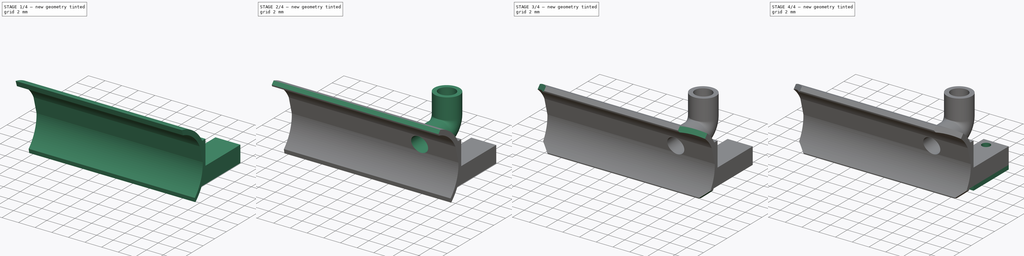
[diagram: build sequence overview — one tinted view per stage of 4, left to right]
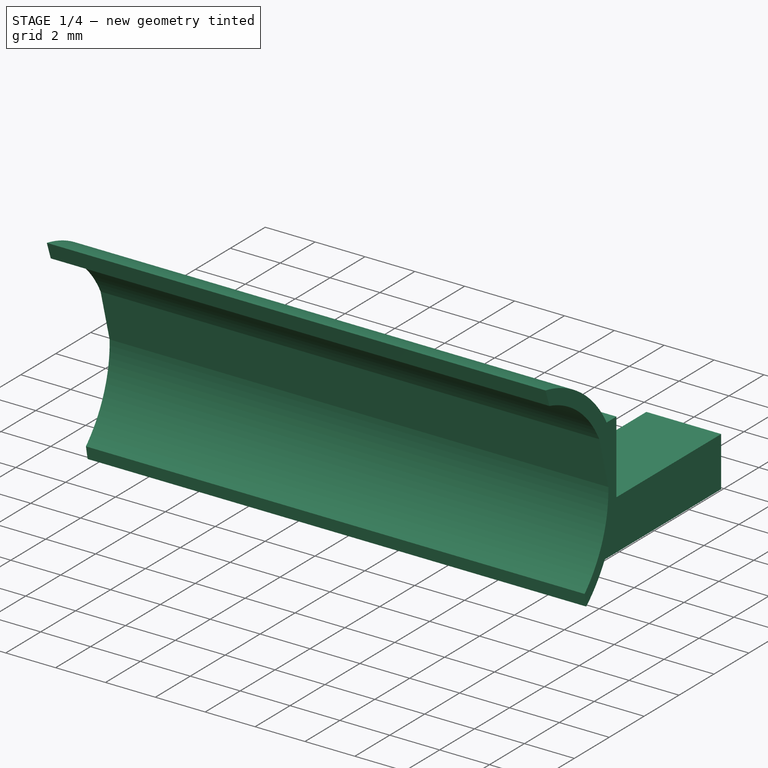
[diagram: stage 1 of 4 — iso view after this stage's code; geometry added in this stage tinted green]
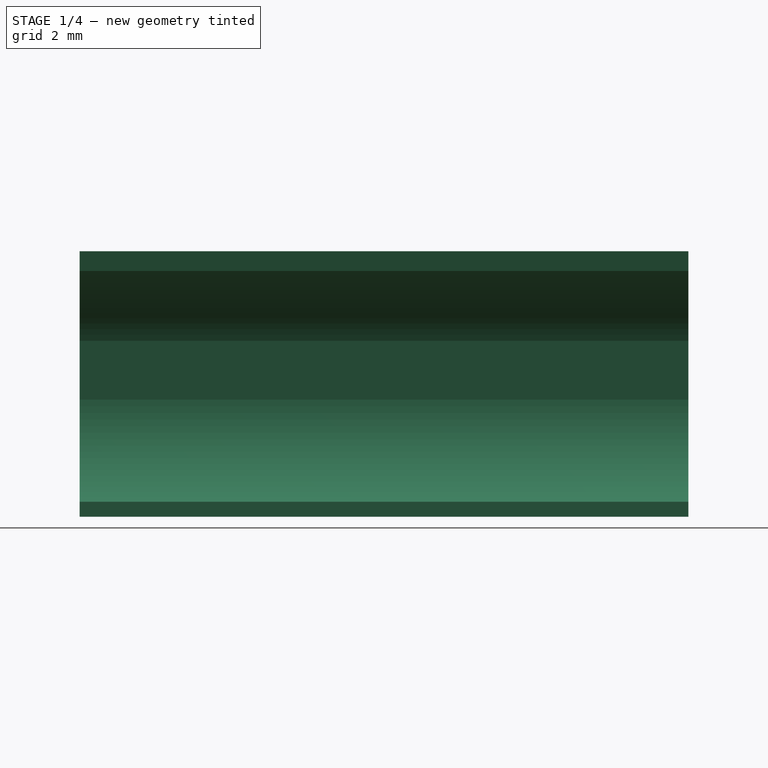
[diagram: stage 1 of 4 — front view after this stage's code; geometry added in this stage tinted green]
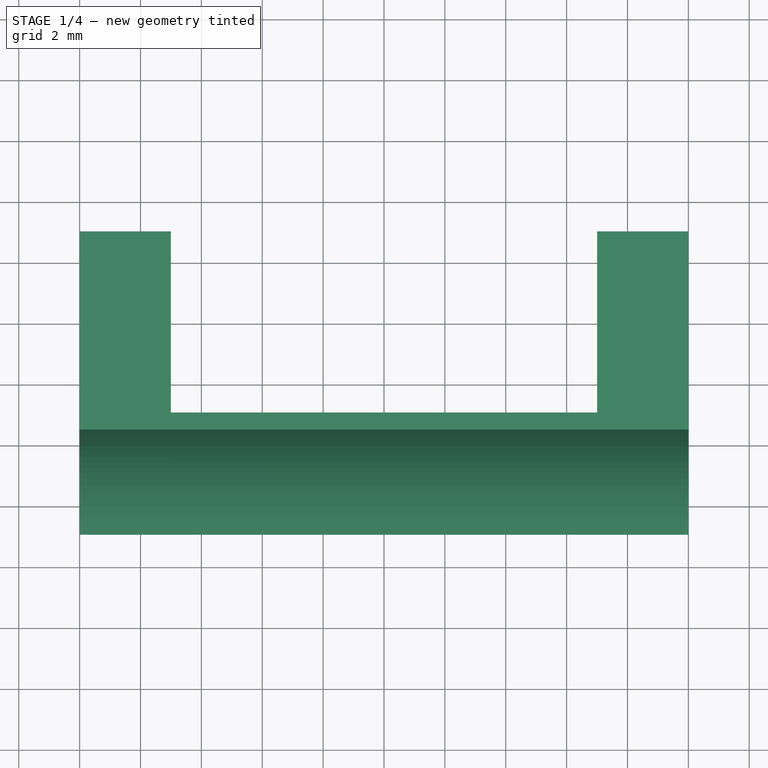
[diagram: stage 1 of 4 — top view after this stage's code; geometry added in this stage tinted green]
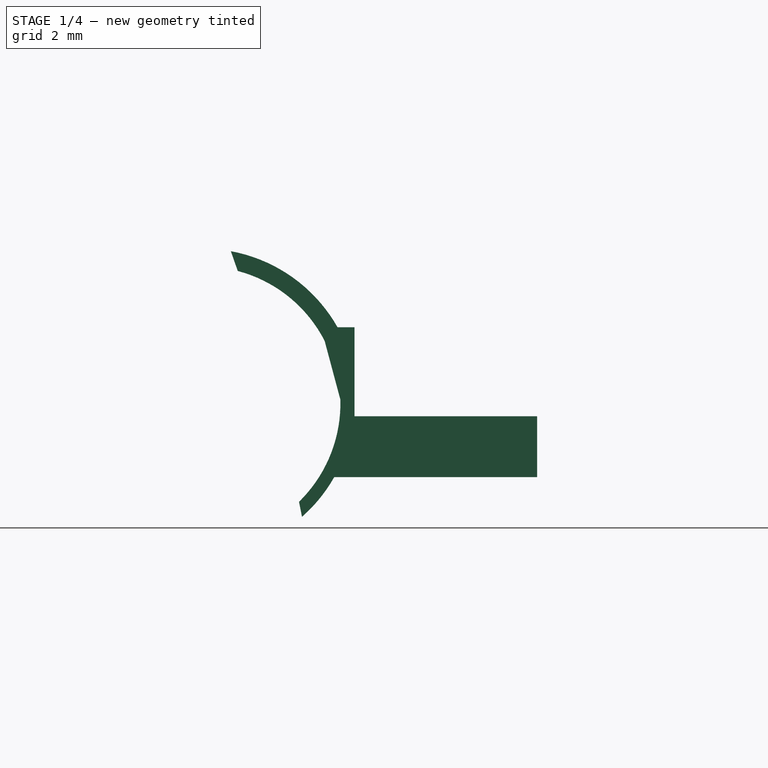
[diagram: stage 1 of 4 — right view after this stage's code; geometry added in this stage tinted green]
FCSTD DOCUMENT  (FreeCAD 0.20R29177 +233 (Git))
Label: actuator8_pistonPCBside
License: All rights reserved
LicenseURL: http://en.wikipedia.org/wiki/All_rights_reserved
objects: Sketcher::SketchObject×7, PartDesign::Chamfer×4, PartDesign::Pad×3, PartDesign::Pocket×2, Spreadsheet::Sheet×1, PartDesign::Plane×1, PartDesign::AdditivePipe×1, PartDesign::Body×1
note: 29 computed .brp shape members not serialized (recipe doc carries the construction recipe); baked Part::Feature solids carry a one-line shape summary decoded from their .brp

FEATURE [Spreadsheet::Sheet] Spreadsheet
  cells = B2=piston; E2=fasteners; C3=ln; D3(pst_ln)=20; F3=ln; G3(fst_ln)=6; C4=rd; D4(pst_rd)=4.5; F4=w; G4(fst_w)=3; C5=angl; D5(pst_an)=15; F5=h; G5(fst_h)=2; C6=arc; D6(pst_arc)=120; B8=flate; C9=slot; D9(flt_slot)=2; C10=fix; D10(flt_fix)=4
FEATURE [Sketcher::SketchObject] Sketch
  FullyConstrained = true
  MapMode = 5
  Placement = pos=(0,0,0) rot=(0.57735,0.57735,0.57735;2.0944rad)
  Support = -> [YZ_Plane]
  expr: Constraints[0] = Spreadsheet.pst_arc
  expr: Constraints[1] = Spreadsheet.pst_rd
  expr: Constraints[4] = Spreadsheet.pst_an
  sketch-geometry (3):
    g0: ArcOfCircle CenterX=0 CenterY=0 CenterZ=0 NormalX=0 NormalY=0 NormalZ=1 AngleXU=0 Radius=4.5 StartAngle=5.49779 EndAngle=7.59218
    g1: LineSegment StartX=0 StartY=0 StartZ=0 EndX=4.34667 EndY=1.16469 EndZ=0
    g2: LineSegment StartX=1.16469 StartY=4.34667 StartZ=0 EndX=3.18198 EndY=-3.18198 EndZ=0
  constraints (9):
    c: Angle(g0) = 2.0944
    c: Radius(g0) = 4.5
    c: Coincident(g1,g0)
    c: PointOnObject(g1,g0)
    c: Angle(g-1,g1) = 0.261799
    c: Coincident(g2,g0)
    c: Coincident(g2,g0)
    c: Perpendicular(g1,g2)
    c: Coincident(g-1,g0)
FEATURE [Sketcher::SketchObject] Sketch001
  ExternalGeometry = -> [Sketch]
  FullyConstrained = false
  MapMode = 5
  Placement = pos=(0,0,0) rot=(0.57735,0.57735,0.57735;2.0944rad)
  Support = -> [YZ_Plane]
  expr: Constraints[16] = Spreadsheet.flt_slot
  expr: Constraints[19] = Spreadsheet.pst_rd
  sketch-geometry (10):
    g0: LineSegment StartX=4.9851 StartY=2.5 StartZ=0 EndX=4.9851 EndY=-2.42353 EndZ=0
    g1: LineSegment StartX=4.9851 StartY=2.5 StartZ=0 EndX=4.42725 EndY=2.5 EndZ=0
    g2: LineSegment StartX=4.9851 StartY=-2.42353 StartZ=0 EndX=4.31629 EndY=-2.42353 EndZ=0
    g3: ArcOfCircle CenterX=0 CenterY=0 CenterZ=0 NormalX=0 NormalY=0 NormalZ=1 AngleXU=0 Radius=4.5 StartAngle=0.474511 EndAngle=1.31267
    g4: ArcOfCircle CenterX=0 CenterY=0 CenterZ=0 NormalX=0 NormalY=0 NormalZ=1 AngleXU=0 Radius=5.08435 StartAngle=0.514047 EndAngle=1.38839
    g5: ArcOfCircle CenterX=0 CenterY=0 CenterZ=0 NormalX=0 NormalY=0 NormalZ=1 AngleXU=0 Radius=4.95014 StartAngle=5.43099 EndAngle=5.77157
    g6: LineSegment StartX=1.14872 StartY=4.35091 StartZ=0 EndX=0.922272 EndY=5 EndZ=0
    g7: LineSegment StartX=3.16223 StartY=-3.2327 StartZ=0 EndX=3.25882 EndY=-3.72612 EndZ=0
    g8: LineSegment StartX=4.00282 StartY=2.05607 StartZ=0 EndX=4.52046 EndY=0.124215 EndZ=0
    g9: ArcOfCircle CenterX=0 CenterY=0 CenterZ=0 NormalX=0 NormalY=0 NormalZ=1 AngleXU=0 Radius=4.52217 StartAngle=5.48677 EndAngle=6.31066
  constraints (22):
    c: Vertical(g0)
    c: Coincident(g1,g0)
    c: Coincident(g2,g0)
    c: Horizontal(g2)
    c: Coincident(g3,g-1)
    c: Coincident(g4,g3)
    c: Coincident(g4,g1)
    c: Coincident(g5,g3)
    c: Coincident(g5,g2)
    c: Coincident(g6,g3)
    c: Coincident(g6,g4)
    c: Coincident(g7,g5)
    c: Coincident(g8,g3)
    c: Coincident(g9,g3)
    c: Coincident(g9,g8)
    c: Coincident(g9,g7)
    c: Distance(g8,g3) = 2
    c: Horizontal(g1)
    c: Perpendicular(g-3,g8)
    c: Radius(g3) = 4.5
    c: Distance(g0,g-1) = 2.5
    c: Distance(g4,g-1) = 5
FEATURE [PartDesign::Pad] Pad
  Direction = (1,1,1)
  Length = 20
  Length2 = 100
  Placement = pos=(0,0,0) rot=(0.57735,0.57735,0.57735;2.0944rad)
  Profile = -> Sketch001
  Type = 0
  expr: Length = Spreadsheet.pst_ln
FEATURE [Sketcher::SketchObject] Sketch002
  ExternalGeometry = -> [Pad]
  FullyConstrained = true
  MapMode = 5
  Placement = pos=(2.2e-15,4.9851,-1.1e-15) rot=(0.57735,0.57735,0.57735;4.18879rad)
  Support = -> [Pad]
  expr: Constraints[18] = Spreadsheet.fst_h
  expr: Constraints[19] = Spreadsheet.fst_w
  sketch-geometry (8):
    g0: LineSegment StartX=-2.42353 StartY=0 StartZ=0 EndX=-0.423528 EndY=0 EndZ=0
    g1: LineSegment StartX=-0.423528 StartY=0 StartZ=0 EndX=-0.423528 EndY=3 EndZ=0
    g2: LineSegment StartX=-0.423528 StartY=3 StartZ=0 EndX=-2.42353 EndY=3 EndZ=0
    g3: LineSegment StartX=-2.42353 StartY=3 StartZ=0 EndX=-2.42353 EndY=0 EndZ=0
    g4: LineSegment StartX=-2.42353 StartY=20 StartZ=0 EndX=-0.423528 EndY=20 EndZ=0
    g5: LineSegment StartX=-0.423528 StartY=20 StartZ=0 EndX=-0.423528 EndY=17 EndZ=0
    g6: LineSegment StartX=-0.423528 StartY=17 StartZ=0 EndX=-2.42353 EndY=17 EndZ=0
    g7: LineSegment StartX=-2.42353 StartY=17 StartZ=0 EndX=-2.42353 EndY=20 EndZ=0
  constraints (22):
    c: Coincident(g0,g1)
    c: Coincident(g1,g2)
    c: Coincident(g2,g3)
    c: Coincident(g3,g0)
    c: Horizontal(g0)
    c: Horizontal(g2)
    c: Vertical(g1)
    c: Vertical(g3)
    c: Coincident(g0,g-3)
    c: Coincident(g4,g5)
    c: Coincident(g5,g6)
    c: Coincident(g6,g7)
    c: Coincident(g7,g4)
    c: Horizontal(g4)
    c: Horizontal(g6)
    c: Vertical(g5)
    c: Vertical(g7)
    c: Coincident(g4,g-3)
    c: DistanceX(g4,g4) = 2
    c: DistanceY(g5,g5) = 3
    c: Equal(g6,g2)
    c: Equal(g5,g1)
FEATURE [PartDesign::Pad] Pad001
  BaseFeature = -> Pad
  Direction = (1,1,1)
  Length = 6
  Length2 = 100
  Placement = pos=(0,0,0) rot=(0.57735,0.57735,0.57735;2.0944rad)
  Profile = -> Sketch002
  Type = 0
  expr: Length = Spreadsheet.fst_ln
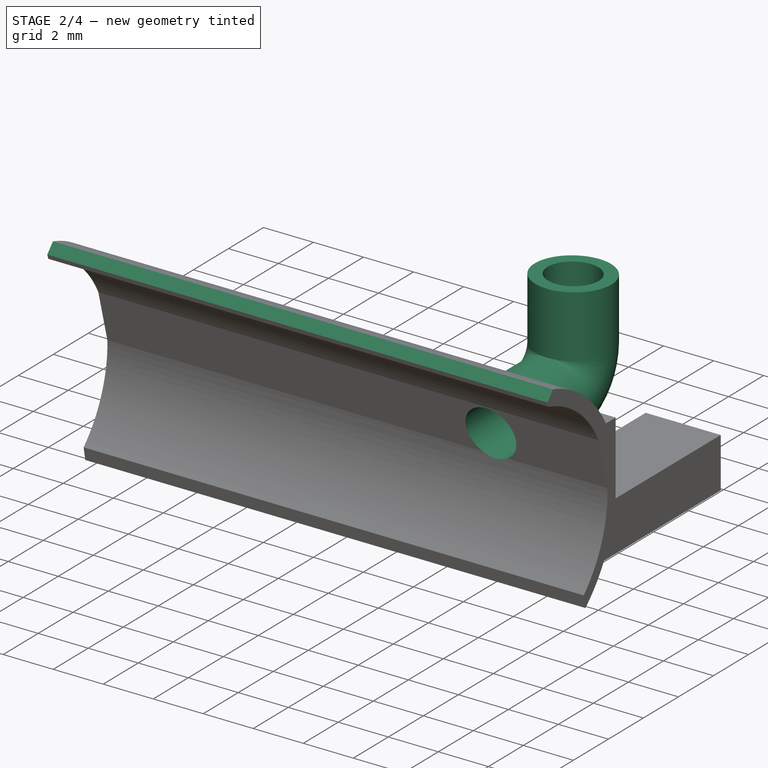
[diagram: stage 2 of 4 — iso view after this stage's code; geometry added in this stage tinted green]
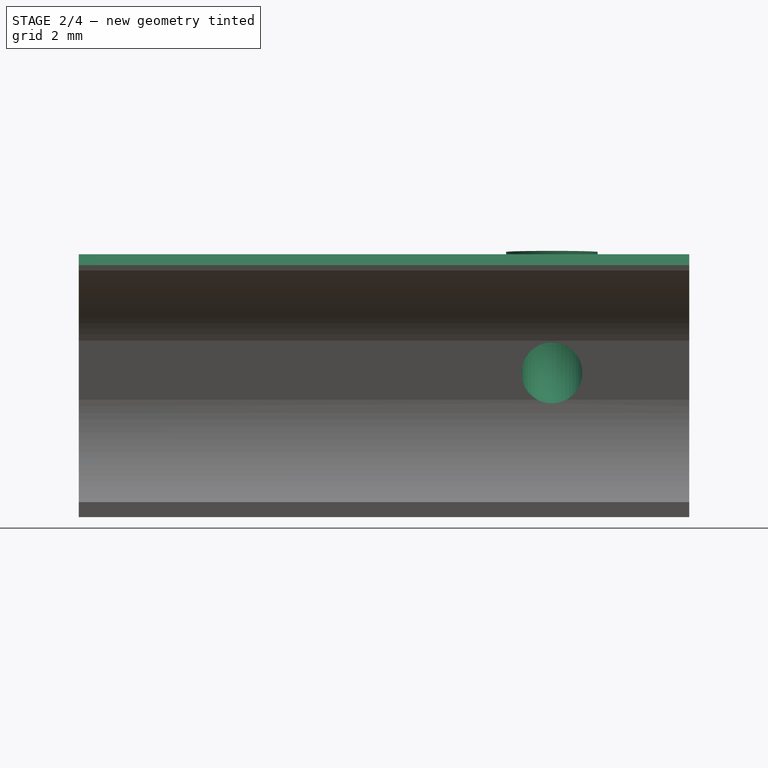
[diagram: stage 2 of 4 — front view after this stage's code; geometry added in this stage tinted green]
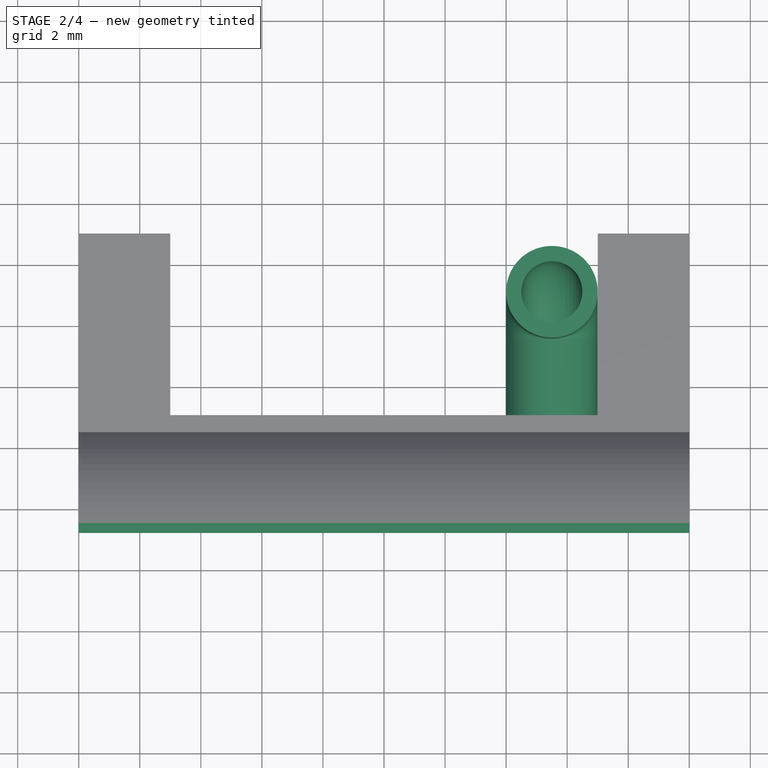
[diagram: stage 2 of 4 — top view after this stage's code; geometry added in this stage tinted green]
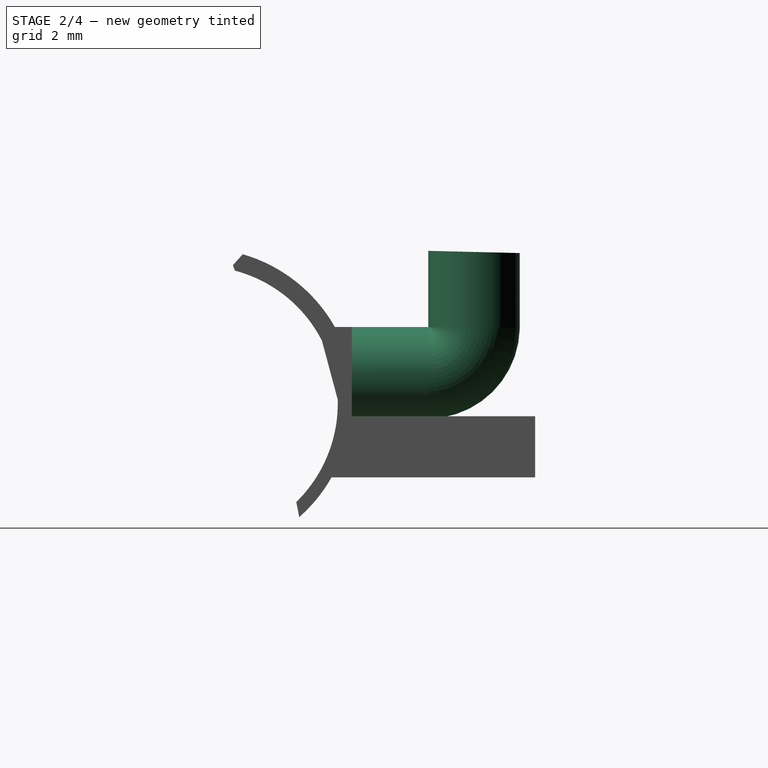
[diagram: stage 2 of 4 — right view after this stage's code; geometry added in this stage tinted green]
FEATURE [Sketcher::SketchObject] Sketch003
  ExternalGeometry = -> [Pad001]
  FullyConstrained = true
  MapMode = 5
  Placement = pos=(2.2e-15,4.9851,-1.1e-15) rot=(0.57735,0.57735,0.57735;4.18879rad)
  Support = -> [Pad001]
  sketch-geometry (1):
    g0: Circle CenterX=1 CenterY=15.5 CenterZ=0 NormalX=0 NormalY=0 NormalZ=1 AngleXU=0 Radius=1
  constraints (3):
    c: Radius(g0) = 1
    c: Distance(g0,g-3) = 4.5
    c: Distance(g0,g-4) = 1.5
FEATURE [PartDesign::Pocket] Pocket
  BaseFeature = -> Pad001
  Direction = (1,1,1)
  Length = 5
  Length2 = 100
  Placement = pos=(0,0,0) rot=(0.57735,0.57735,0.57735;2.0944rad)
  Profile = -> Sketch003
  Type = 1
FEATURE [Sketcher::SketchObject] Sketch004
  ExternalGeometry = -> [Pocket]
  FullyConstrained = true
  MapMode = 5
  Placement = pos=(2.2e-15,4.9851,-1.1e-15) rot=(0.57735,0.57735,0.57735;4.18879rad)
  Support = -> [Pocket]
  sketch-geometry (2):
    g0: Circle CenterX=1 CenterY=15.5 CenterZ=0 NormalX=0 NormalY=0 NormalZ=1 AngleXU=0 Radius=1.5
    g1: Circle CenterX=1 CenterY=15.5 CenterZ=0 NormalX=0 NormalY=0 NormalZ=1 AngleXU=0 Radius=1
  constraints (4):
    c: Coincident(g0,g-3)
    c: Coincident(g1,g0)
    c: Radius(g0) = 1.5
    c: Radius(g1) = 1
FEATURE [PartDesign::Plane] DatumPlane001
  AttachmentOffset = pos=(0,0,1.5) rot=(0,0,1;0rad)
  Length = 30
  MapMode = 5
  Placement = pos=(15.5,-6e-15,6.8e-15) rot=(0.57735,0.57735,-0.57735;4.18879rad)
  ResizeMode = 1
  Support = -> [Pocket]
  Width = 20
FEATURE [Sketcher::SketchObject] Sketch005
  ExternalGeometry = -> [Pocket]
  FullyConstrained = false
  MapMode = 5
  Placement = pos=(15.5,-6e-15,6.8e-15) rot=(0.57735,0.57735,-0.57735;4.18879rad)
  Support = -> [DatumPlane001]
  sketch-geometry (3):
    g0: LineSegment StartX=4.98689 StartY=-1 StartZ=0 EndX=7.4851 EndY=-1 EndZ=0
    g1: ArcOfCircle CenterX=7.46714 CenterY=-2.51797 CenterZ=0 NormalX=0 NormalY=0 NormalZ=1 AngleXU=0 Radius=1.51808 StartAngle=0.0120052 EndAngle=1.55896
    g2: LineSegment StartX=8.9851 StartY=-2.49975 StartZ=0 EndX=8.9851 EndY=-4.96189 EndZ=0
  constraints (5):
    c: Horizontal(g0)
    c: Distance(g-3,g0) = 1.5
    c: Coincident(g1,g0)
    c: Coincident(g2,g1)
    c: Vertical(g2)
FEATURE [PartDesign::AdditivePipe] AdditivePipe
  AuxilleryCurvelinear = true
  AuxillerySpineTangent = false
  BaseFeature = -> Pocket
  Binormal = (0,0,0)
  Mode = 0
  Placement = pos=(0,0,0) rot=(0.57735,0.57735,0.57735;2.0944rad)
  Profile = -> Sketch004
  Spine = -> Sketch005 [Edge1,Edge2,Edge3]
  SpineTangent = false
  Transformation = 0
  Transition = 0
FEATURE [PartDesign::Chamfer] Chamfer
  Angle = 45
  Base = -> AdditivePipe [Edge11]
  BaseFeature = -> AdditivePipe
  ChamferType = 0
  FlipDirection = false
  Placement = pos=(0,0,0) rot=(0.57735,0.57735,0.57735;2.0944rad)
  Size = 0.5
  Size2 = 1
  SupportTransform = false
  UseAllEdges = false
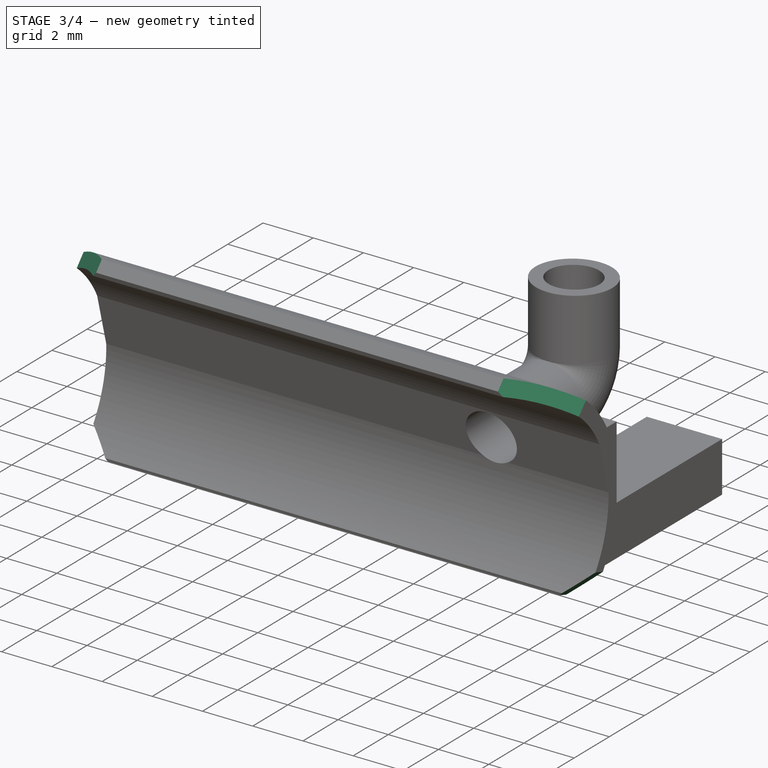
[diagram: stage 3 of 4 — iso view after this stage's code; geometry added in this stage tinted green]
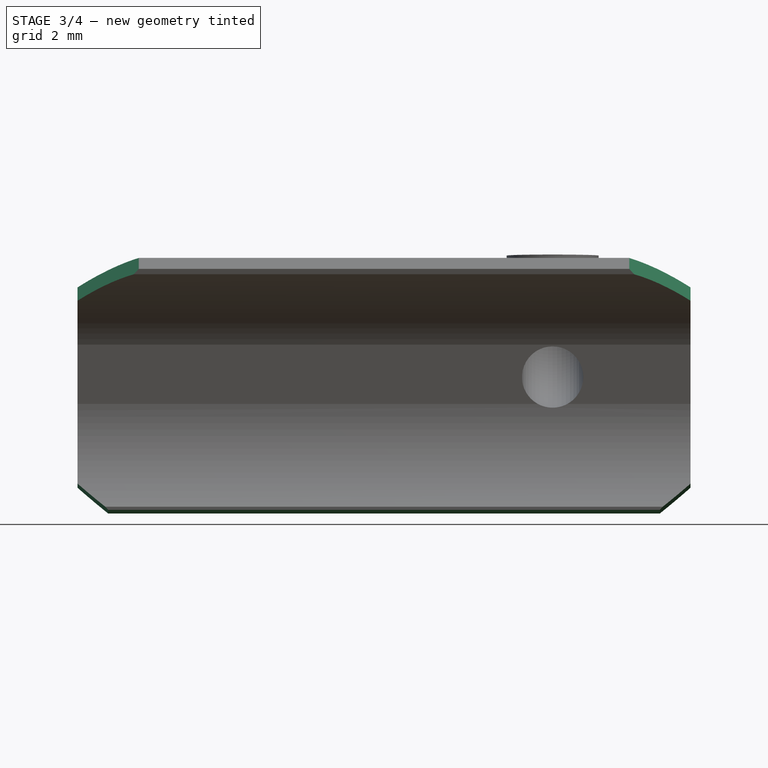
[diagram: stage 3 of 4 — front view after this stage's code; geometry added in this stage tinted green]
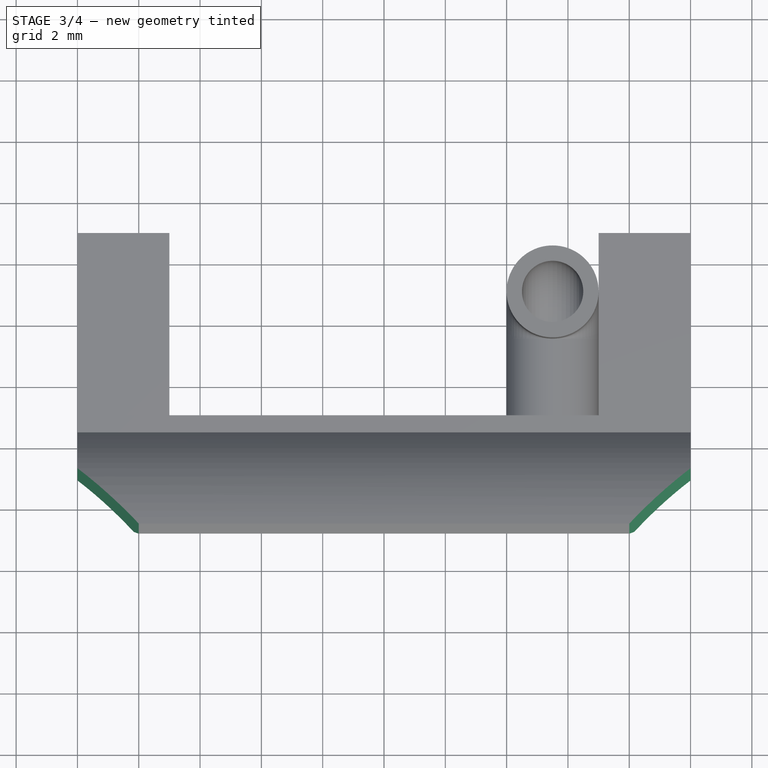
[diagram: stage 3 of 4 — top view after this stage's code; geometry added in this stage tinted green]
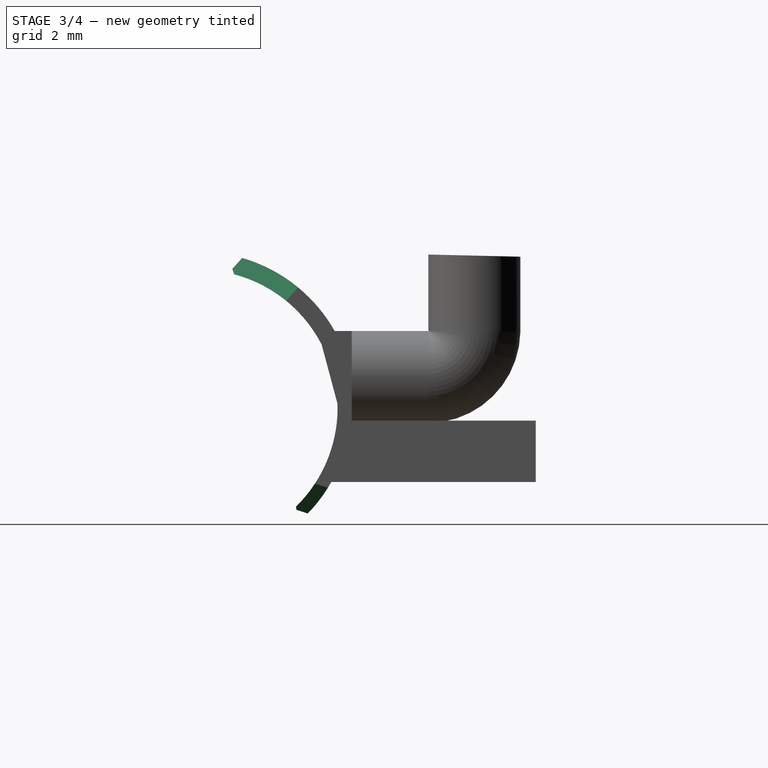
[diagram: stage 3 of 4 — right view after this stage's code; geometry added in this stage tinted green]
FEATURE [PartDesign::Chamfer] Chamfer001
  Angle = 45
  Base = -> Chamfer [Edge17,Edge5]
  BaseFeature = -> Chamfer
  ChamferType = 0
  FlipDirection = false
  Placement = pos=(0,0,0) rot=(0.57735,0.57735,0.57735;2.0944rad)
  Size = 2
  Size2 = 1
  SupportTransform = false
  UseAllEdges = false
FEATURE [PartDesign::Chamfer] Chamfer002
  Angle = 45
  Base = -> Chamfer001 [Edge45]
  BaseFeature = -> Chamfer001
  ChamferType = 0
  FlipDirection = false
  Placement = pos=(0,0,0) rot=(0.57735,0.57735,0.57735;2.0944rad)
  Size = 0.4
  Size2 = 1
  SupportTransform = false
  UseAllEdges = false
FEATURE [PartDesign::Chamfer] Chamfer003
  Angle = 45
  Base = -> Chamfer002 [Edge17,Edge2]
  BaseFeature = -> Chamfer002
  ChamferType = 0
  FlipDirection = false
  Placement = pos=(0,0,0) rot=(0.57735,0.57735,0.57735;2.0944rad)
  Size = 1
  Size2 = 1
  SupportTransform = false
  UseAllEdges = false
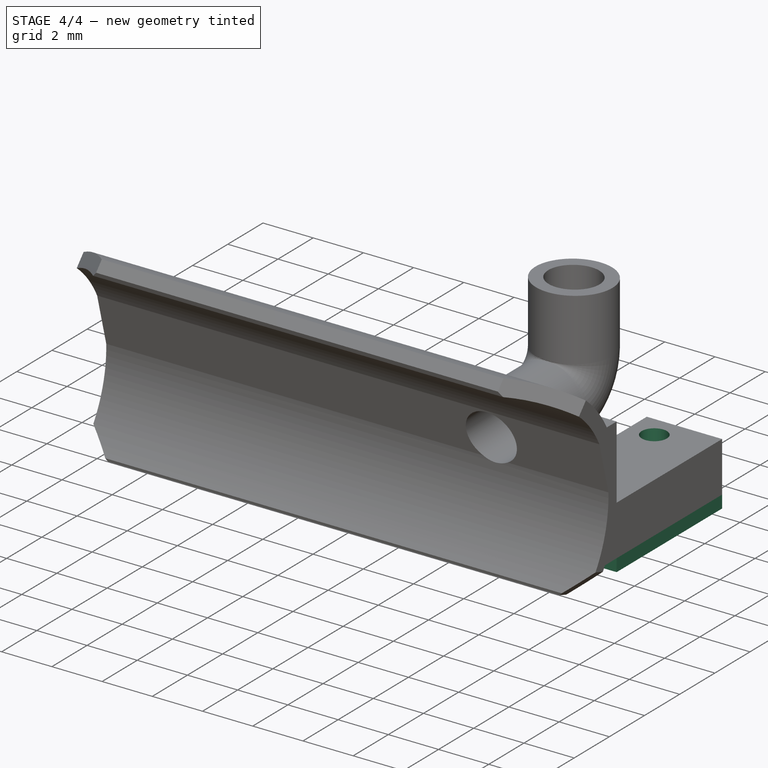
[diagram: stage 4 of 4 — iso view after this stage's code; geometry added in this stage tinted green]
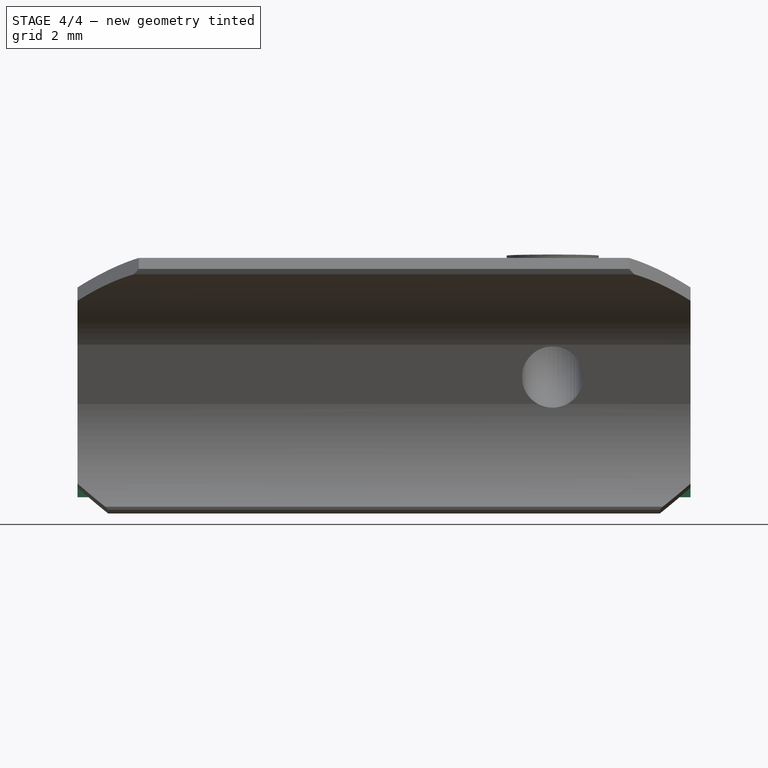
[diagram: stage 4 of 4 — front view after this stage's code; geometry added in this stage tinted green]
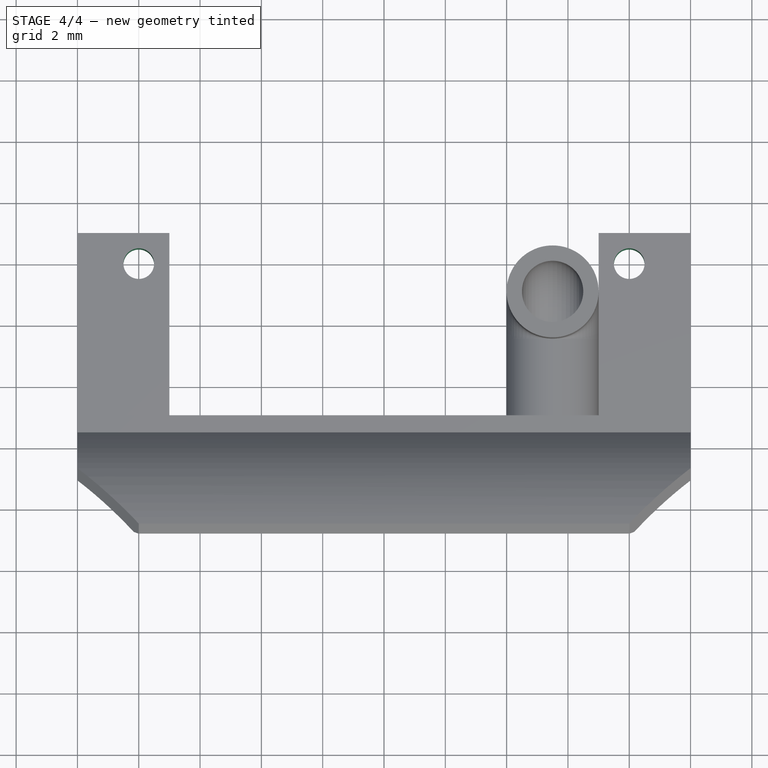
[diagram: stage 4 of 4 — top view after this stage's code; geometry added in this stage tinted green]
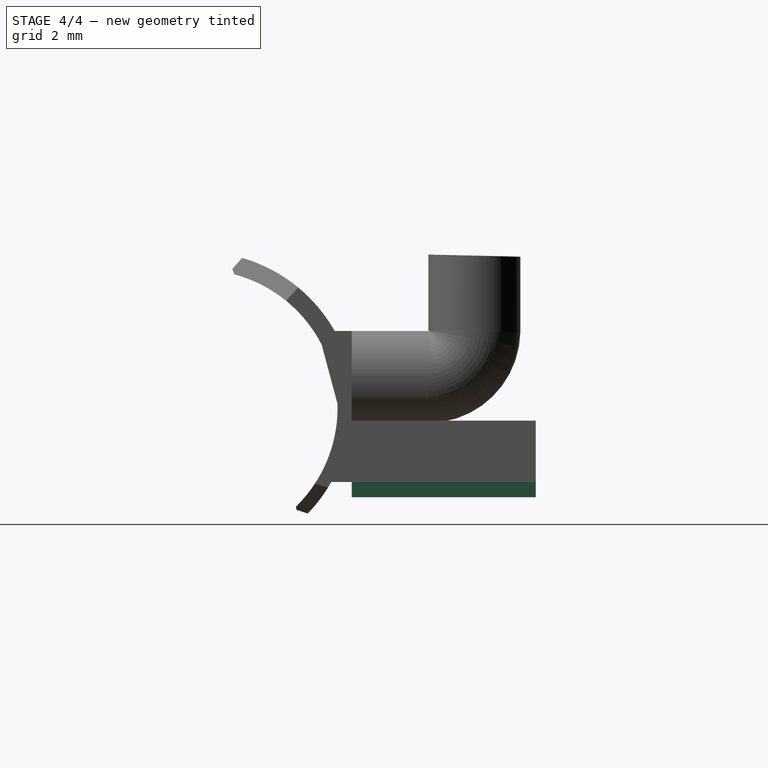
[diagram: stage 4 of 4 — right view after this stage's code; geometry added in this stage tinted green]
FEATURE [PartDesign::Pad] Pad002
  BaseFeature = -> Chamfer003
  Direction = (2e-16,-4e-16,-1)
  Length = 0.5
  Length2 = 10
  Placement = pos=(0,0,0) rot=(0.57735,0.57735,0.57735;2.0944rad)
  Profile = -> Chamfer003 [Face21,Face20]
  Type = 0
FEATURE [Sketcher::SketchObject] Sketch006  label="fx"
  ExternalGeometry = -> [Pad002]
  FullyConstrained = true
  MapMode = 5
  Placement = pos=(1e-16,-2e-16,-0.423528) rot=(0,0,-1;1.5708rad)
  Support = -> [Pad002]
  sketch-geometry (2):
    g0: Circle CenterX=-9.9851 CenterY=18 CenterZ=0 NormalX=0 NormalY=0 NormalZ=1 AngleXU=0 Radius=0.5
    g1: Circle CenterX=-9.9851 CenterY=2 CenterZ=0 NormalX=0 NormalY=0 NormalZ=1 AngleXU=0 Radius=0.5
  constraints (6):
    c: Diameter(g1) = 1
    c: Diameter(g0) = 1
    c: Distance(g0,g-6) = 1
    c: Distance(g0,g-5) = 1
    c: Distance(g1,g-4) = 1
    c: Distance(g1,g-3) = 1
FEATURE [PartDesign::Pocket] Pocket001  label="fix"
  BaseFeature = -> Pad002
  Direction = (2e-16,-4e-16,-1)
  Length = 5
  Length2 = 5
  Placement = pos=(0,0,0) rot=(0.57735,0.57735,0.57735;2.0944rad)
  Profile = -> Sketch006
  ReferenceAxis = -> Sketch006 [N_Axis]
  Type = 1
FEATURE [PartDesign::Body] Body
  Group = -> [Sketch,Sketch001,Pad,Sketch002,Pad001,Sketch003,Pocket,Sketch004,DatumPlane001,Sketch005,AdditivePipe,Chamfer,Chamfer001,Chamfer002,Chamfer003,Pad002,Sketch006,Pocket001]
  Origin = -> Origin
  Tip = -> Pocket001
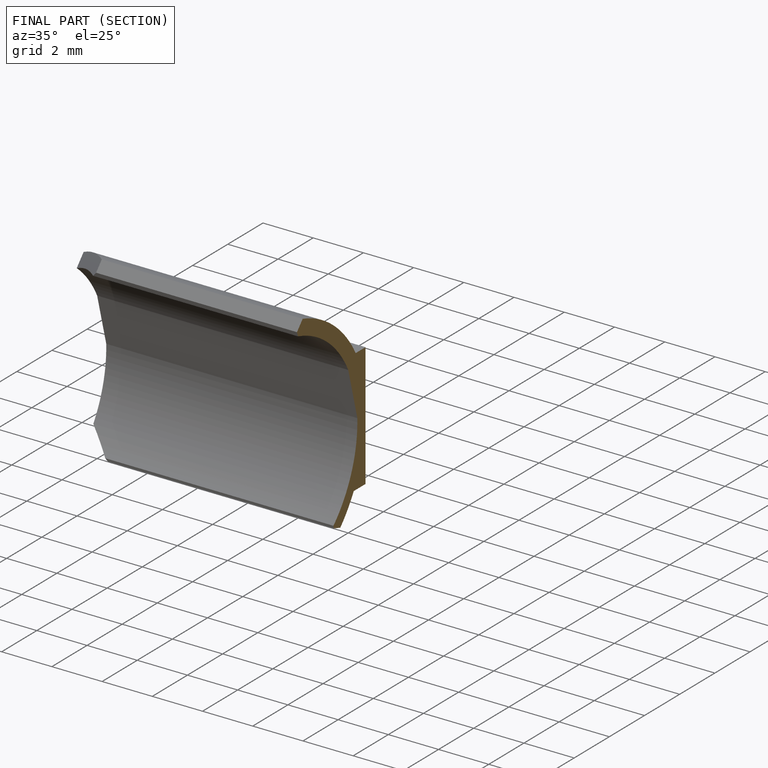
[diagram: finished part — half-section view (interior)]
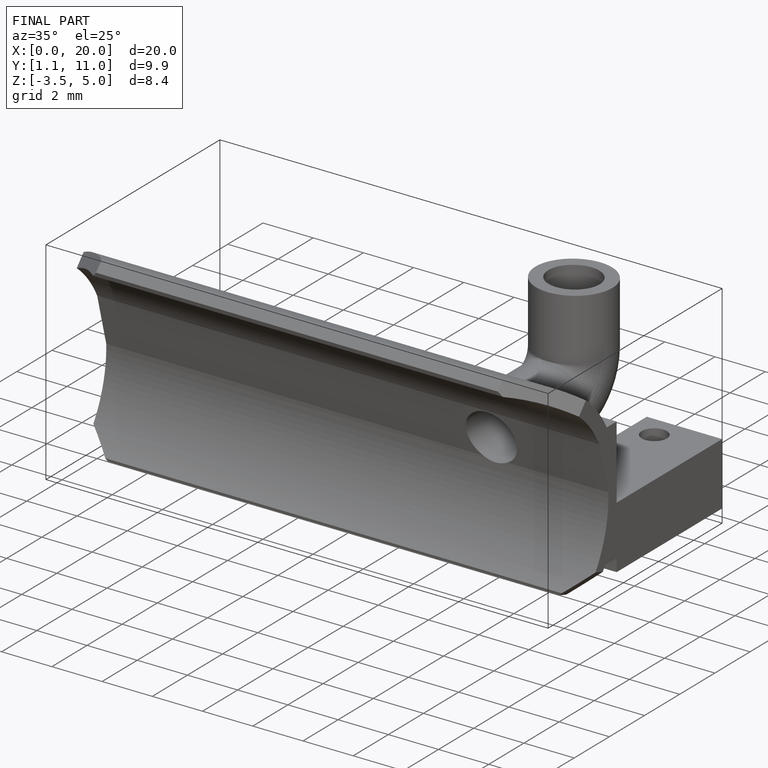
[diagram: finished part — iso view with bounding-box wireframe]
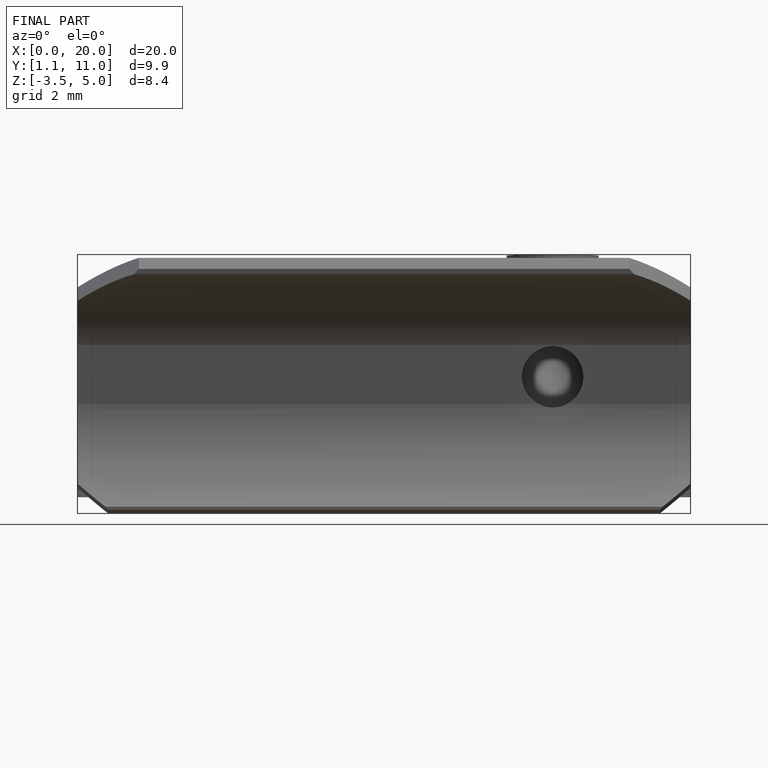
[diagram: finished part — front view with bounding-box wireframe]
